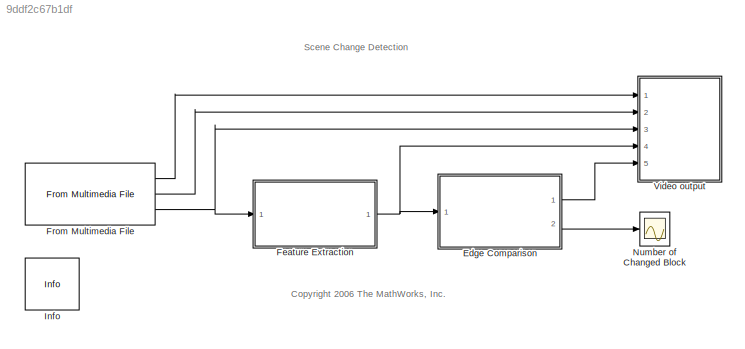
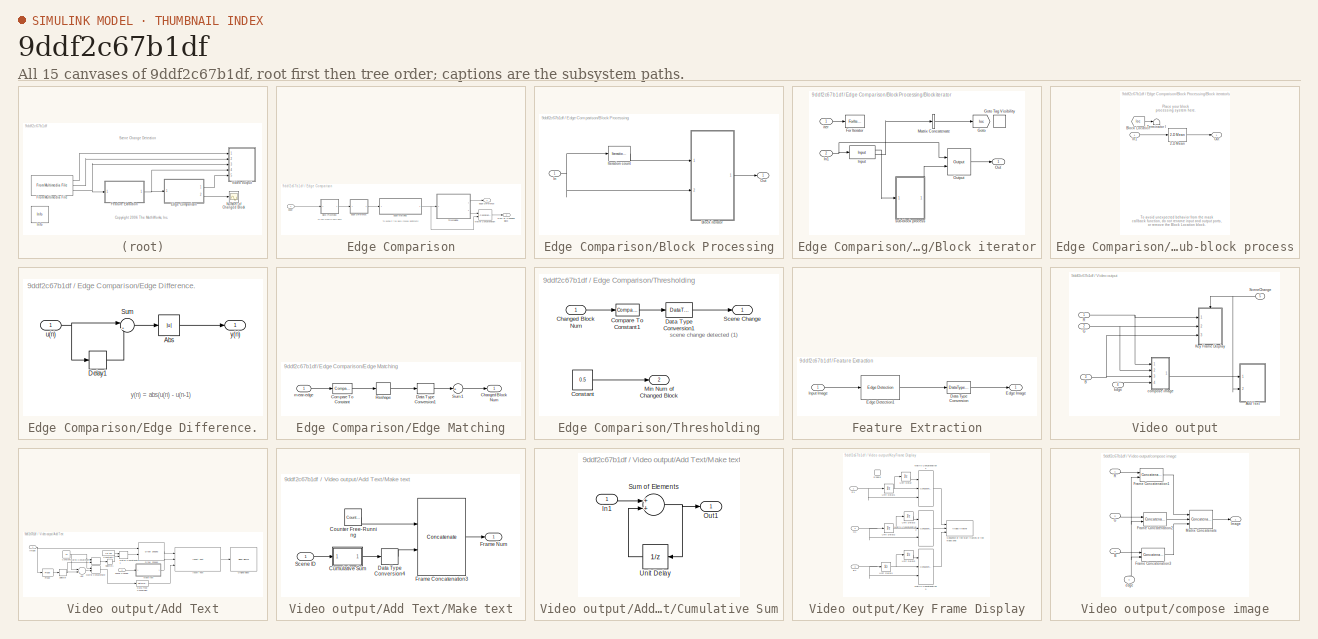
[diagram: thumbnail index - all 15 canvases of the model, root first then tree order]
MODEL slx_9ddf2c67b1df
KIND model
CONFIG AbsTol = auto
CONFIG FixedStep = auto
CONFIG MaxStep = auto
CONFIG MinStep = auto
CONFIG RelTol = 1e-3
CONFIG SampleTimeConstraint = Unconstrained
CONFIG Solver = FixedStepDiscrete
CONFIG SolverMode = Auto
CONFIG SolverName = FixedStepDiscrete
CONFIG StartTime = 0.0
CONFIG StopTime = inf
BLOCK [SubSystem] Edge Comparison
  Ports = [1, 2]
  RequestExecContextInheritance = off
  Variant = off
BLOCK [SubSystem] Edge Comparison/Block Processing
  CopyFcn = set_param(gcb,'LinkStatus','none');
  DialogController = vipDDGCreate
  Ports = [1, 1]
  RequestExecContextInheritance = off
  TreatAsAtomicUnit = on
  Variant = off
BLOCK [SubSystem] Edge Comparison/Block Processing/Block iterator
  CopyFcn = set_param(gcb,'ReferenceBlock','');
  Ports = [2, 1]
  RequestExecContextInheritance = off
  Variant = off
BLOCK [ForIterator] Edge Comparison/Block Processing/Block iterator/For Iterator
  IndexMode = Zero-based
  IterationLimit = (sz(1)/M)*(sz(2)/N)
  IterationSource = external
  IterationVariableDataType = double
  Ports = [1]
  ShowIterationPort = off
BLOCK [Goto] Edge Comparison/Block Processing/Block iterator/Goto
  GotoTag = loc
  TagVisibility = scoped
BLOCK [GotoTagVisibility] Edge Comparison/Block Processing/Block iterator/Goto Tag Visibility
  GotoTag = loc
BLOCK [Inport] Edge Comparison/Block Processing/Block iterator/In1
  IconDisplay = Port number
  Port = 2
BLOCK [Reference] Edge Comparison/Block Processing/Block iterator/Input  REF=vipmisc/Input
  Ports = [1, 2]
  SourceBlock = vipmisc/Input
  SourceType = Input for block processing
BLOCK [Concatenate] Edge Comparison/Block Processing/Block iterator/Matrix Concatenate
  ConcatenateDimension = 2
  Mode = Multidimensional array
  NumInputs = 1
  Ports = [1, 1]
BLOCK [Outport] Edge Comparison/Block Processing/Block iterator/Out
  IconDisplay = Port number
BLOCK [Reference] Edge Comparison/Block Processing/Block iterator/Output  REF=vipmisc/Output
  Ports = [2, 1]
  SourceBlock = vipmisc/Output
BLOCK [Inport] Edge Comparison/Block Processing/Block iterator/iter
  IconDisplay = Port number
BLOCK [SubSystem] Edge Comparison/Block Processing/Block iterator/sub-block process
  Ports = [1, 1]
  RequestExecContextInheritance = off
  Variant = off
BLOCK [Reference] Edge Comparison/Block Processing/Block iterator/sub-block process/2-D Mean  REF=visionstatistics/2-D Mean
  Ports = [1, 1]
  SourceBlock = visionstatistics/2-D Mean
  SourceType = 2-D Mean
  UserDataPersistent = on
BLOCK [From] Edge Comparison/Block Processing/Block iterator/sub-block process/Block Location
  GotoTag = loc
  TagVisibility = scoped
BLOCK [Inport] Edge Comparison/Block Processing/Block iterator/sub-block process/In1
  IconDisplay = Port number
BLOCK [Outport] Edge Comparison/Block Processing/Block iterator/sub-block process/Out
  IconDisplay = Port number
BLOCK [Terminator] Edge Comparison/Block Processing/Block iterator/sub-block process/Terminator I
BLOCK [Inport] Edge Comparison/Block Processing/In
  IconDisplay = Port number
BLOCK [Reference] Edge Comparison/Block Processing/Iteration count  REF=vipmisc/Iteration count
  Ports = [1, 1]
  SourceBlock = vipmisc/Iteration count
  SourceType = Block processing iteration counter
BLOCK [Outport] Edge Comparison/Block Processing/Out
  IconDisplay = Port number
BLOCK [Inport] Edge Comparison/Edge
  IconDisplay = Port number
BLOCK [Outport] Edge Comparison/Edge Difference
  IconDisplay = Port number
BLOCK [SubSystem] Edge Comparison/Edge Difference.
  Ports = [1, 1]
  RequestExecContextInheritance = off
  Variant = off
BLOCK [Abs] Edge Comparison/Edge Difference./Abs
BLOCK [Delay] Edge Comparison/Edge Difference./Delay1
  DelayLength = 1
  InitialCondition = 0
  InputPortMap = u0
  Ports = [1, 1]
BLOCK [Sum] Edge Comparison/Edge Difference./Sum
  IconShape = round
  Inputs = |+-
  Ports = [2, 1]
BLOCK [Inport] Edge Comparison/Edge Difference./u(n)
  IconDisplay = Port number
BLOCK [Outport] Edge Comparison/Edge Difference./y(n)
  IconDisplay = Port number
BLOCK [SubSystem] Edge Comparison/Edge Matching
  Ports = [1, 1]
  RequestExecContextInheritance = off
  Variant = off
BLOCK [Outport] Edge Comparison/Edge Matching/Changed Block Num
  IconDisplay = Port number
BLOCK [Reference] Edge Comparison/Edge Matching/Compare To Constant  REF=simulink/Logic and Bit
Operations/Compare
To Constant
  Ports = [1, 1]
  SourceBlock = simulink/Logic and Bit\nOperations/Compare\nTo Constant
  SourceType = Compare To Constant
BLOCK [DataTypeConversion] Edge Comparison/Edge Matching/Data Type Conversion1
  OutDataTypeStr = single
BLOCK [Reshape] Edge Comparison/Edge Matching/Reshape
  OutputDimensionality = Column vector (2-D)
  Ports = [1, 1]
BLOCK [Sum] Edge Comparison/Edge Matching/Sum1
  Inputs = +
  Ports = [1, 1]
BLOCK [Inport] Edge Comparison/Edge Matching/mean edge
  IconDisplay = Port number
BLOCK [Concatenate] Edge Comparison/Matrix Concatenation
  ConcatenateDimension = 2
  Mode = Multidimensional array
  Ports = [2, 1]
BLOCK [Outport] Edge Comparison/Num of Changed Block
  IconDisplay = Port number
  Port = 2
BLOCK [SubSystem] Edge Comparison/Thresholding
  Ports = [1, 2]
  RequestExecContextInheritance = off
  Variant = off
BLOCK [Inport] Edge Comparison/Thresholding/Changed Block Num
  IconDisplay = Port number
BLOCK [Reference] Edge Comparison/Thresholding/Compare To Constant1  REF=simulink/Logic and Bit
Operations/Compare
To Constant
  Ports = [1, 1]
  SourceBlock = simulink/Logic and Bit\nOperations/Compare\nTo Constant
  SourceType = Compare To Constant
BLOCK [Constant] Edge Comparison/Thresholding/Constant
  OutDataTypeStr = single
  Value = 0.5
BLOCK [DataTypeConversion] Edge Comparison/Thresholding/Data Type Conversion1
  OutDataTypeStr = single
BLOCK [Outport] Edge Comparison/Thresholding/Min Num of Changed Block
  IconDisplay = Port number
  Port = 2
BLOCK [Outport] Edge Comparison/Thresholding/Scene Change
  IconDisplay = Port number
BLOCK [SubSystem] Feature Extraction
  Ports = [1, 1]
  RequestExecContextInheritance = off
  Variant = off
BLOCK [DataTypeConversion] Feature Extraction/Data Type Conversion
  OutDataTypeStr = single
BLOCK [Reference] Feature Extraction/Edge Detection1  REF=visionanalysis/Edge Detection
  Ports = [1, 1]
  SourceBlock = visionanalysis/Edge Detection
  SourceType = Edge Detection
BLOCK [Outport] Feature Extraction/Edge Image
  IconDisplay = Port number
BLOCK [Inport] Feature Extraction/Input Image
  IconDisplay = Port number
BLOCK [Reference] From Multimedia File  REF=dspvision/From Multimedia File
  Ports = [0, 3]
  SourceBlock = dspvision/From Multimedia File
  SourceType = From Multimedia File
BLOCK [Reference] Info  REF=vipmisc/Info
  Ports = []
  SourceBlock = vipmisc/Info
  SourceType = Info
BLOCK [Scope] Number of Changed Block
  Ports = [1]
  ScopeSpecificationString = Simulink.scopes.TimeScopeBlockCfg('CurrentConfiguration', extmgr.ConfigurationSet(extmgr.Configuration('Core','General UI',true),extmgr.Configuration('Core','Source UI',true),extmgr.Configuration('Sources','WiredSimulink',true,'DataLoggingVariableName','ScopeData1','DataLoggingSaveFormat','StructureWithTime','DataLoggingLimitDataPoints',true,'DataLoggingDecimation','1','DataLoggingDecimateData',tr...<+1718ch>
BLOCK [SubSystem] Video output
  Ports = [5]
  RequestExecContextInheritance = off
  Variant = off
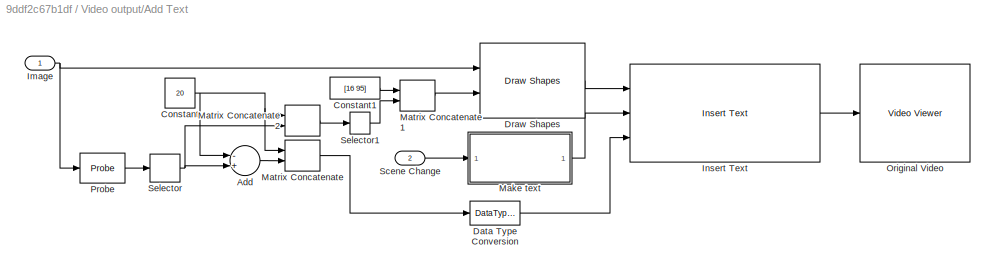
BLOCK [SubSystem] Video output/Add Text
  Ports = [2]
  RequestExecContextInheritance = off
  Variant = off
BLOCK [Sum] Video output/Add Text/Add
  InputSameDT = off
  Inputs = -+
  OutDataTypeStr = Inherit: Inherit via internal rule
  Ports = [2, 1]
  SaturateOnIntegerOverflow = off
BLOCK [Constant] Video output/Add Text/Constant
  Value = 20
BLOCK [Constant] Video output/Add Text/Constant1
  Value = [16 95]
  VectorParams1D = off
BLOCK [DataTypeConversion] Video output/Add Text/Data Type Conversion
  RndMeth = Floor
  SaturateOnIntegerOverflow = off
BLOCK [Reference] Video output/Add Text/Draw Shapes  REF=visiontextngfix/Draw Shapes
  Ports = [2, 1]
  SourceBlock = visiontextngfix/Draw Shapes
  SourceType = Draw Shapes
BLOCK [Inport] Video output/Add Text/Image
  IconDisplay = Port number
BLOCK [Reference] Video output/Add Text/Insert Text  REF=visiontextngfix/Insert Text
  Ports = [3, 1]
  SourceBlock = visiontextngfix/Insert Text
  SourceType = Insert Text
BLOCK [SubSystem] Video output/Add Text/Make text
  Ports = [1, 1]
  RequestExecContextInheritance = off
  Variant = off
BLOCK [Reference] Video output/Add Text/Make text/Counter Free-Running  REF=simulink/Sources/Counter
Free-Running
  Ports = [0, 1]
  SourceBlock = simulink/Sources/Counter\nFree-Running
  SourceType = Counter Free-Running
BLOCK [SubSystem] Video output/Add Text/Make text/Cumulative Sum
  Ports = [1, 1]
  RequestExecContextInheritance = off
  Variant = off
BLOCK [Inport] Video output/Add Text/Make text/Cumulative Sum/In1
  IconDisplay = Port number
BLOCK [Outport] Video output/Add Text/Make text/Cumulative Sum/Out1
  IconDisplay = Port number
BLOCK [Sum] Video output/Add Text/Make text/Cumulative Sum/Sum of Elements
  InputSameDT = off
  OutDataTypeStr = Inherit: Inherit via internal rule
  Ports = [2, 1]
  SaturateOnIntegerOverflow = off
BLOCK [UnitDelay] Video output/Add Text/Make text/Cumulative Sum/Unit Delay
  InputProcessing = Elements as channels (sample based)
  SampleTime = -1
BLOCK [DataTypeConversion] Video output/Add Text/Make text/Data Type Conversion4
  OutDataTypeStr = uint32
  SaturateOnIntegerOverflow = off
BLOCK [Concatenate] Video output/Add Text/Make text/Frame Concatenation3
  ConcatenateDimension = 2
  Mode = Multidimensional array
  Ports = [2, 1]
BLOCK [Outport] Video output/Add Text/Make text/Frame Num
  IconDisplay = Port number
BLOCK [Inport] Video output/Add Text/Make text/Scene ID
  IconDisplay = Port number
BLOCK [Concatenate] Video output/Add Text/Matrix Concatenate
  ConcatenateDimension = 2
  Mode = Multidimensional array
  Ports = [2, 1]
BLOCK [Concatenate] Video output/Add Text/Matrix Concatenate1
  ConcatenateDimension = 2
  Mode = Multidimensional array
  Ports = [2, 1]
BLOCK [Concatenate] Video output/Add Text/Matrix Concatenate2
  ConcatenateDimension = 2
  Mode = Multidimensional array
  Ports = [2, 1]
BLOCK [Reference] Video output/Add Text/Original Video  REF=visionsinks/Video Viewer
  Ports = [1]
  SourceBlock = visionsinks/Video Viewer
  SourceType = Video Viewer
  UserDataPersistent = on
BLOCK [Probe] Video output/Add Text/Probe
  Ports = [1, 1]
  ProbeComplexSignal = off
  ProbeSampleTime = off
  ProbeSignalDimensions = on
  ProbeWidth = off
BLOCK [Inport] Video output/Add Text/Scene Change
  IconDisplay = Port number
  Port = 2
BLOCK [Selector] Video output/Add Text/Selector
  IndexOptions = Index vector (dialog)
  Indices = 1
  InputPortWidth = 3
  OutputSizes = 1
  Ports = [1, 1]
BLOCK [Selector] Video output/Add Text/Selector1
  IndexOptions = Select all,Index vector (dialog)
  Indices = [1 3],[2 1]
  InputPortWidth = 3
  NumberOfDimensions = 2
  OutputSizes = 1,1
  Ports = [1, 1]
BLOCK [Inport] Video output/B
  IconDisplay = Port number
  Port = 3
BLOCK [Inport] Video output/Edge
  IconDisplay = Port number
  Port = 4
BLOCK [Inport] Video output/G
  IconDisplay = Port number
  Port = 2
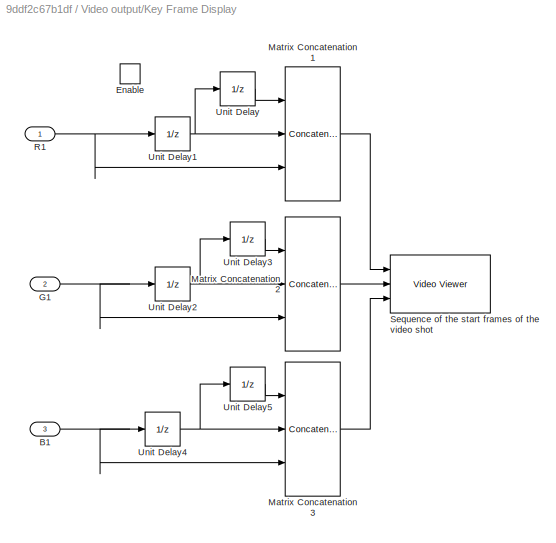
BLOCK [SubSystem] Video output/Key Frame Display
  Ports = [3, 0, 1]
  RequestExecContextInheritance = off
  Variant = off
BLOCK [Inport] Video output/Key Frame Display/B1
  IconDisplay = Port number
  Port = 3
BLOCK [EnablePort] Video output/Key Frame Display/Enable
  Ports = []
  PropagateVarSize = During execution
BLOCK [Inport] Video output/Key Frame Display/G1
  IconDisplay = Port number
  Port = 2
BLOCK [Concatenate] Video output/Key Frame Display/Matrix Concatenation1
  ConcatenateDimension = 2
  Mode = Multidimensional array
  NumInputs = 3
  Ports = [3, 1]
BLOCK [Concatenate] Video output/Key Frame Display/Matrix Concatenation2
  ConcatenateDimension = 2
  Mode = Multidimensional array
  NumInputs = 3
  Ports = [3, 1]
BLOCK [Concatenate] Video output/Key Frame Display/Matrix Concatenation3
  ConcatenateDimension = 2
  Mode = Multidimensional array
  NumInputs = 3
  Ports = [3, 1]
BLOCK [Inport] Video output/Key Frame Display/R1
  IconDisplay = Port number
BLOCK [Reference] Video output/Key Frame Display/Sequence of the start frames of the video shot  REF=visionsinks/Video Viewer
  Ports = [3]
  SourceBlock = visionsinks/Video Viewer
  SourceType = Video Viewer
  UserDataPersistent = on
BLOCK [UnitDelay] Video output/Key Frame Display/Unit Delay
  InputProcessing = Elements as channels (sample based)
  SampleTime = -1
BLOCK [UnitDelay] Video output/Key Frame Display/Unit Delay1
  InputProcessing = Elements as channels (sample based)
  SampleTime = -1
BLOCK [UnitDelay] Video output/Key Frame Display/Unit Delay2
  InputProcessing = Elements as channels (sample based)
  SampleTime = -1
BLOCK [UnitDelay] Video output/Key Frame Display/Unit Delay3
  InputProcessing = Elements as channels (sample based)
  SampleTime = -1
BLOCK [UnitDelay] Video output/Key Frame Display/Unit Delay4
  InputProcessing = Elements as channels (sample based)
  SampleTime = -1
BLOCK [UnitDelay] Video output/Key Frame Display/Unit Delay5
  InputProcessing = Elements as channels (sample based)
  SampleTime = -1
BLOCK [Inport] Video output/R
  IconDisplay = Port number
BLOCK [Inport] Video output/SceneChange
  IconDisplay = Port number
  Port = 5
BLOCK [SubSystem] Video output/compose image
  Ports = [4, 1]
  RequestExecContextInheritance = off
  Variant = off
BLOCK [Inport] Video output/compose image/B
  IconDisplay = Port number
  Port = 3
BLOCK [Concatenate] Video output/compose image/Frame Concatenation1
  ConcatenateDimension = 2
  Mode = Multidimensional array
  Ports = [2, 1]
BLOCK [Concatenate] Video output/compose image/Frame Concatenation2
  ConcatenateDimension = 2
  Mode = Multidimensional array
  Ports = [2, 1]
BLOCK [Concatenate] Video output/compose image/Frame Concatenation3
  ConcatenateDimension = 2
  Mode = Multidimensional array
  Ports = [2, 1]
BLOCK [Inport] Video output/compose image/G
  IconDisplay = Port number
  Port = 2
BLOCK [Outport] Video output/compose image/Image
  IconDisplay = Port number
BLOCK [Concatenate] Video output/compose image/Matrix Concatenate
  ConcatenateDimension = 3
  Mode = Multidimensional array
  NumInputs = 3
  Ports = [3, 1]
BLOCK [Inport] Video output/compose image/R
  IconDisplay = Port number
BLOCK [Inport] Video output/compose image/edge
  IconDisplay = Port number
  Port = 4
ANNOTATION (root): <copyright redacted>
ANNOTATION (root): Scene Change Detection
ANNOTATION Edge Comparison: To decide if the block change significantly
ANNOTATION Edge Comparison: To find mean in each block
ANNOTATION Edge Comparison/Block Processing/Block iterator/sub-block process: Place your block processing system here.
ANNOTATION Edge Comparison/Block Processing/Block iterator/sub-block process: To avoid unexpected behavior from the mask callback function, do not rename input and output ports, or remove the Block Location block.
ANNOTATION Edge Comparison/Edge Difference.: y(n) = abs(u(n) - u(n-1)
ANNOTATION Edge Comparison/Thresholding: scene change detected (1)
LINE Edge Comparison/Block Processing:1 -> Edge Comparison/Edge Difference.:1
LINE Edge Comparison/Edge Difference./Abs:1 -> Edge Comparison/Edge Difference./y(n):1
LINE Edge Comparison/Edge Difference./Delay1:1 -> Edge Comparison/Edge Difference./Sum:2
LINE Edge Comparison/Edge Difference./Sum:1 -> Edge Comparison/Edge Difference./Abs:1
NET Edge Comparison/Edge Difference./u(n):1 -> Edge Comparison/Edge Difference./Delay1:1, Edge Comparison/Edge Difference./Sum:1
LINE Edge Comparison/Edge Difference.:1 -> Edge Comparison/Edge Matching:1
LINE Edge Comparison/Edge Matching/Compare To Constant:1 -> Edge Comparison/Edge Matching/Reshape:1
LINE Edge Comparison/Edge Matching/Data Type Conversion1:1 -> Edge Comparison/Edge Matching/Sum1:1
LINE Edge Comparison/Edge Matching/Reshape:1 -> Edge Comparison/Edge Matching/Data Type Conversion1:1
LINE Edge Comparison/Edge Matching/Sum1:1 -> Edge Comparison/Edge Matching/Changed Block Num:1
LINE Edge Comparison/Edge Matching/mean edge:1 -> Edge Comparison/Edge Matching/Compare To Constant:1
NET Edge Comparison/Edge Matching:1 -> Edge Comparison/Matrix Concatenation:2, Edge Comparison/Thresholding:1
LINE Edge Comparison/Edge:1 -> Edge Comparison/Block Processing:1
LINE Edge Comparison/Matrix Concatenation:1 -> Edge Comparison/Num of Changed Block:1
LINE Edge Comparison/Thresholding/Changed Block Num:1 -> Edge Comparison/Thresholding/Compare To Constant1:1
LINE Edge Comparison/Thresholding/Compare To Constant1:1 -> Edge Comparison/Thresholding/Data Type Conversion1:1
LINE Edge Comparison/Thresholding/Constant:1 -> Edge Comparison/Thresholding/Min Num of Changed Block:1
LINE Edge Comparison/Thresholding/Data Type Conversion1:1 -> Edge Comparison/Thresholding/Scene Change:1
LINE Edge Comparison/Thresholding:1 -> Edge Comparison/Edge Difference:1
LINE Edge Comparison/Thresholding:2 -> Edge Comparison/Matrix Concatenation:1
LINE Edge Comparison:1 -> Video output:5
LINE Edge Comparison:2 -> Number of Changed Block:1
LINE Feature Extraction/Data Type Conversion:1 -> Feature Extraction/Edge Image:1
LINE Feature Extraction/Edge Detection1:1 -> Feature Extraction/Data Type Conversion:1
LINE Feature Extraction/Input Image:1 -> Feature Extraction/Edge Detection1:1
NET Feature Extraction:1 -> Edge Comparison:1, Video output:4
LINE From Multimedia File:1 -> Video output:1
LINE From Multimedia File:2 -> Video output:2
NET From Multimedia File:3 -> Feature Extraction:1, Video output:3
LINE Video output/Add Text/Add:1 -> Video output/Add Text/Matrix Concatenate:2
LINE Video output/Add Text/Constant1:1 -> Video output/Add Text/Matrix Concatenate1:1
NET Video output/Add Text/Constant:1 -> Video output/Add Text/Add:1, Video output/Add Text/Matrix Concatenate2:1, Video output/Add Text/Matrix Concatenate:1
LINE Video output/Add Text/Data Type Conversion:1 -> Video output/Add Text/Insert Text:3
LINE Video output/Add Text/Draw Shapes:1 -> Video output/Add Text/Insert Text:1
NET Video output/Add Text/Image:1 -> Video output/Add Text/Draw Shapes:1, Video output/Add Text/Probe:1
LINE Video output/Add Text/Insert Text:1 -> Video output/Add Text/Original Video:1
LINE Video output/Add Text/Make text/Counter Free-Running:1 -> Video output/Add Text/Make text/Frame Concatenation3:1
LINE Video output/Add Text/Make text/Cumulative Sum/In1:1 -> Video output/Add Text/Make text/Cumulative Sum/Sum of Elements:1
NET Video output/Add Text/Make text/Cumulative Sum/Sum of Elements:1 -> Video output/Add Text/Make text/Cumulative Sum/Out1:1, Video output/Add Text/Make text/Cumulative Sum/Unit Delay:1
LINE Video output/Add Text/Make text/Cumulative Sum/Unit Delay:1 -> Video output/Add Text/Make text/Cumulative Sum/Sum of Elements:2
LINE Video output/Add Text/Make text/Cumulative Sum:1 -> Video output/Add Text/Make text/Data Type Conversion4:1
LINE Video output/Add Text/Make text/Data Type Conversion4:1 -> Video output/Add Text/Make text/Frame Concatenation3:2
LINE Video output/Add Text/Make text/Frame Concatenation3:1 -> Video output/Add Text/Make text/Frame Num:1
LINE Video output/Add Text/Make text/Scene ID:1 -> Video output/Add Text/Make text/Cumulative Sum:1
LINE Video output/Add Text/Make text:1 -> Video output/Add Text/Insert Text:2
LINE Video output/Add Text/Matrix Concatenate1:1 -> Video output/Add Text/Draw Shapes:2
LINE Video output/Add Text/Matrix Concatenate2:1 -> Video output/Add Text/Selector1:1
LINE Video output/Add Text/Matrix Concatenate:1 -> Video output/Add Text/Data Type Conversion:1
LINE Video output/Add Text/Probe:1 -> Video output/Add Text/Selector:1
LINE Video output/Add Text/Scene Change:1 -> Video output/Add Text/Make text:1
LINE Video output/Add Text/Selector1:1 -> Video output/Add Text/Matrix Concatenate1:2
NET Video output/Add Text/Selector:1 -> Video output/Add Text/Add:2, Video output/Add Text/Matrix Concatenate2:2
NET Video output/B:1 -> Video output/Key Frame Display:3, Video output/compose image:3
LINE Video output/Edge:1 -> Video output/compose image:4
NET Video output/G:1 -> Video output/Key Frame Display:2, Video output/compose image:2
NET Video output/Key Frame Display/B1:1 -> Video output/Key Frame Display/Matrix Concatenation3:3, Video output/Key Frame Display/Unit Delay4:1
NET Video output/Key Frame Display/G1:1 -> Video output/Key Frame Display/Matrix Concatenation2:3, Video output/Key Frame Display/Unit Delay2:1
LINE Video output/Key Frame Display/Matrix Concatenation1:1 -> Video output/Key Frame Display/Sequence of the start frames of the video shot:1
LINE Video output/Key Frame Display/Matrix Concatenation2:1 -> Video output/Key Frame Display/Sequence of the start frames of the video shot:2
LINE Video output/Key Frame Display/Matrix Concatenation3:1 -> Video output/Key Frame Display/Sequence of the start frames of the video shot:3
NET Video output/Key Frame Display/R1:1 -> Video output/Key Frame Display/Matrix Concatenation1:3, Video output/Key Frame Display/Unit Delay1:1
NET Video output/Key Frame Display/Unit Delay1:1 -> Video output/Key Frame Display/Matrix Concatenation1:2, Video output/Key Frame Display/Unit Delay:1
NET Video output/Key Frame Display/Unit Delay2:1 -> Video output/Key Frame Display/Matrix Concatenation2:2, Video output/Key Frame Display/Unit Delay3:1
LINE Video output/Key Frame Display/Unit Delay3:1 -> Video output/Key Frame Display/Matrix Concatenation2:1
NET Video output/Key Frame Display/Unit Delay4:1 -> Video output/Key Frame Display/Matrix Concatenation3:2, Video output/Key Frame Display/Unit Delay5:1
LINE Video output/Key Frame Display/Unit Delay5:1 -> Video output/Key Frame Display/Matrix Concatenation3:1
LINE Video output/Key Frame Display/Unit Delay:1 -> Video output/Key Frame Display/Matrix Concatenation1:1
NET Video output/R:1 -> Video output/Key Frame Display:1, Video output/compose image:1
NET Video output/SceneChange:1 -> Video output/Add Text:2, Video output/Key Frame Display:enable
LINE Video output/compose image/B:1 -> Video output/compose image/Frame Concatenation3:1
LINE Video output/compose image/Frame Concatenation1:1 -> Video output/compose image/Matrix Concatenate:1
LINE Video output/compose image/Frame Concatenation2:1 -> Video output/compose image/Matrix Concatenate:2
LINE Video output/compose image/Frame Concatenation3:1 -> Video output/compose image/Matrix Concatenate:3
LINE Video output/compose image/G:1 -> Video output/compose image/Frame Concatenation2:1
LINE Video output/compose image/Matrix Concatenate:1 -> Video output/compose image/Image:1
LINE Video output/compose image/R:1 -> Video output/compose image/Frame Concatenation1:1
NET Video output/compose image/edge:1 -> Video output/compose image/Frame Concatenation1:2, Video output/compose image/Frame Concatenation2:2, Video output/compose image/Frame Concatenation3:2
LINE Video output/compose image:1 -> Video output/Add Text:1
note: NET lines group one-source signal fan-out (src -> all destinations, sorted); 1:1 wires keep LINE
